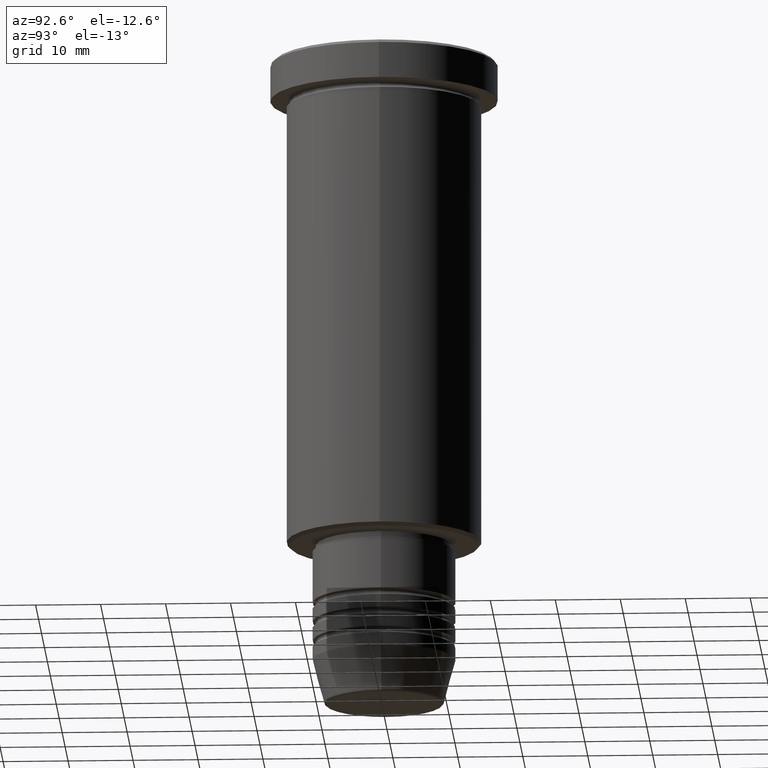
[diagram: clean part render]
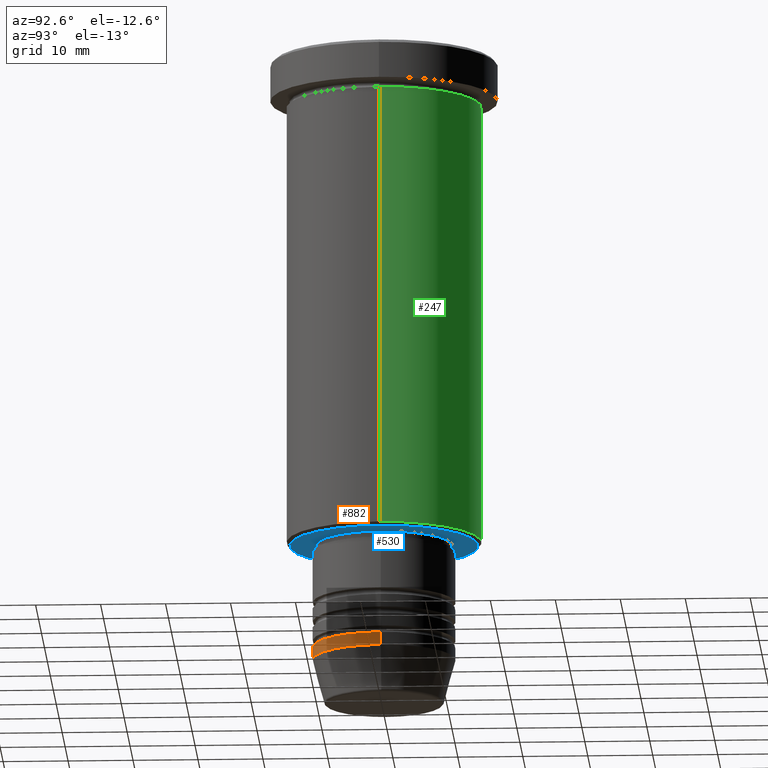
[diagram: same view with three faces highlighted in distinct colors, each labeled with its STEP entity id]
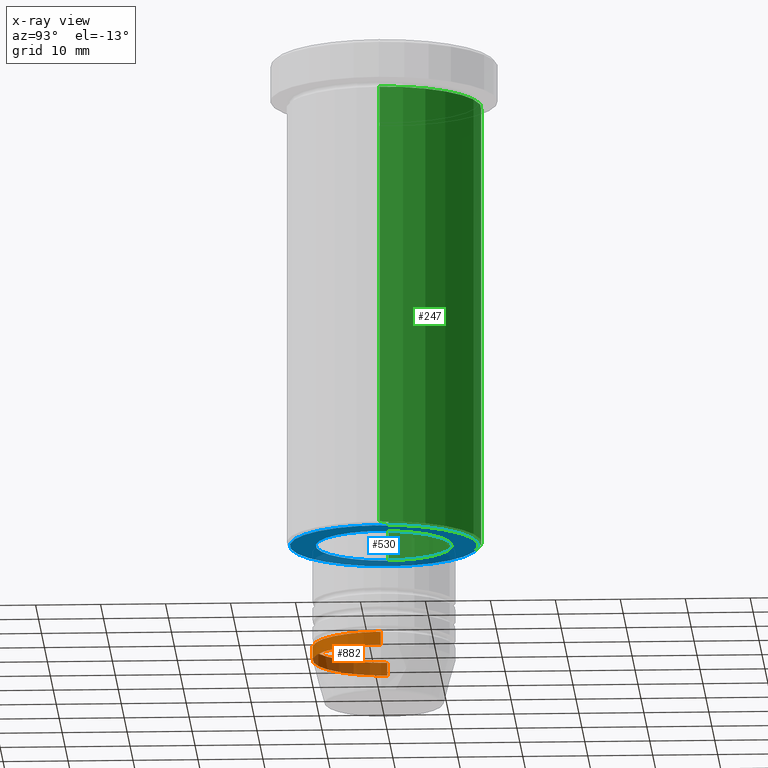
[diagram: x-ray of the same camera — body ghosted, the three highlighted faces saturated]
A machine part, auxiliary view with three faces highlighted in distinct colors.
The next image is the same camera in x-ray (body ghosted, the three faces saturated) — at least one of them is partly hidden behind the body in this view.
Their STEP definitions:

[orange] entity #882 — the highlighted cylindrical surface (partial cylindrical patch) has radius 11 mm, axis along (-0, -0, 1).
#2 = CARTESIAN_POINT ( 'NONE',  ( 0.000000000000000000, 0.000000000000000000, -92.00000000000000000 ) ) ;
#5 = EDGE_CURVE ( 'NONE', #928, #731, #685, .T. ) ;
#65 = AXIS2_PLACEMENT_3D ( 'NONE', #195, #126, #122 ) ;
#73 = CARTESIAN_POINT ( 'NONE',  ( 11.00000000000000000, 0.000000000000000000, -94.00000000000000000 ) ) ;
#94 = FACE_OUTER_BOUND ( 'NONE', #640, .T. ) ;
#122 = DIRECTION ( 'NONE',  ( 1.000000000000000000, 0.000000000000000000, 0.000000000000000000 ) ) ;
#126 = DIRECTION ( 'NONE',  ( -0.000000000000000000, -0.000000000000000000, 1.000000000000000000 ) ) ;
#169 = AXIS2_PLACEMENT_3D ( 'NONE', #2, #541, #545 ) ;
#178 = CARTESIAN_POINT ( 'NONE',  ( 11.00000000000000000, 0.000000000000000000, -92.00000000000000000 ) ) ;
#195 = CARTESIAN_POINT ( 'NONE',  ( 0.000000000000000000, 0.000000000000000000, 0.000000000000000000 ) ) ;
#220 = EDGE_CURVE ( 'NONE', #1052, #755, #803, .T. ) ;
#443 = AXIS2_PLACEMENT_3D ( 'NONE', #840, #1031, #497 ) ;
#447 = CARTESIAN_POINT ( 'NONE',  ( -11.00000000000000000, 1.347111479062088405E-15, -94.00000000000000000 ) ) ;
#465 = VECTOR ( 'NONE', #801, 1000.000000000000000 ) ;
#497 = DIRECTION ( 'NONE',  ( 1.000000000000000000, 0.000000000000000000, 0.000000000000000000 ) ) ;
#505 = CARTESIAN_POINT ( 'NONE',  ( -11.00000000000000000, 1.347111479062088405E-15, -92.00000000000000000 ) ) ;
#541 = DIRECTION ( 'NONE',  ( -0.000000000000000000, -0.000000000000000000, 1.000000000000000000 ) ) ;
#545 = DIRECTION ( 'NONE',  ( 1.000000000000000000, 0.000000000000000000, 0.000000000000000000 ) ) ;
#588 = LINE ( 'NONE', #1037, #1002 ) ;
#640 = EDGE_LOOP ( 'NONE', ( #923, #1105, #1047, #954 ) ) ;
#685 = CIRCLE ( 'NONE', #169, 11.00000000000000000 ) ;
#717 = EDGE_CURVE ( 'NONE', #1052, #928, #1182, .T. ) ;
#731 = VERTEX_POINT ( 'NONE', #178 ) ;
#755 = VERTEX_POINT ( 'NONE', #73 ) ;
#801 = DIRECTION ( 'NONE',  ( -0.000000000000000000, -0.000000000000000000, 1.000000000000000000 ) ) ;
#803 = CIRCLE ( 'NONE', #443, 11.00000000000000000 ) ;
#840 = CARTESIAN_POINT ( 'NONE',  ( 0.000000000000000000, 0.000000000000000000, -94.00000000000000000 ) ) ;
#882 = ADVANCED_FACE ( 'NONE', ( #94 ), #1016, .T. ) ;
#923 = ORIENTED_EDGE ( 'NONE', *, *, #717, .F. ) ;
#928 = VERTEX_POINT ( 'NONE', #505 ) ;
#953 = DIRECTION ( 'NONE',  ( -0.000000000000000000, -0.000000000000000000, 1.000000000000000000 ) ) ;
#954 = ORIENTED_EDGE ( 'NONE', *, *, #5, .F. ) ;
#975 = EDGE_CURVE ( 'NONE', #755, #731, #588, .T. ) ;
#999 = CARTESIAN_POINT ( 'NONE',  ( -11.00000000000000000, 1.347111479062088405E-15, 0.000000000000000000 ) ) ;
#1002 = VECTOR ( 'NONE', #953, 1000.000000000000000 ) ;
#1016 = CYLINDRICAL_SURFACE ( 'NONE', #65, 11.00000000000000000 ) ;
#1031 = DIRECTION ( 'NONE',  ( -0.000000000000000000, -0.000000000000000000, 1.000000000000000000 ) ) ;
#1037 = CARTESIAN_POINT ( 'NONE',  ( 11.00000000000000000, 0.000000000000000000, 0.000000000000000000 ) ) ;
#1047 = ORIENTED_EDGE ( 'NONE', *, *, #975, .T. ) ;
#1052 = VERTEX_POINT ( 'NONE', #447 ) ;
#1105 = ORIENTED_EDGE ( 'NONE', *, *, #220, .T. ) ;
#1182 = LINE ( 'NONE', #999, #465 ) ;

[blue] entity #530 — the highlighted planar face has unit normal (0, 0, -1).
#35 = VERTEX_POINT ( 'NONE', #81 ) ;
#78 = DIRECTION ( 'NONE',  ( 0.000000000000000000, 0.000000000000000000, -1.000000000000000000 ) ) ;
#81 = CARTESIAN_POINT ( 'NONE',  ( 10.49999999999999822, 0.000000000000000000, -76.00000000000000000 ) ) ;
#113 = CARTESIAN_POINT ( 'NONE',  ( 0.000000000000000000, 15.00000000000000000, -76.00000000000000000 ) ) ;
#131 = EDGE_LOOP ( 'NONE', ( #837, #949 ) ) ;
#259 = DIRECTION ( 'NONE',  ( -0.000000000000000000, -0.000000000000000000, 1.000000000000000000 ) ) ;
#297 = CIRCLE ( 'NONE', #783, 10.49999999999999822 ) ;
#298 = DIRECTION ( 'NONE',  ( -1.000000000000000000, 0.000000000000000000, 0.000000000000000000 ) ) ;
#345 = CARTESIAN_POINT ( 'NONE',  ( 0.000000000000000000, 0.000000000000000000, -76.00000000000000000 ) ) ;
#355 = DIRECTION ( 'NONE',  ( -1.000000000000000000, 0.000000000000000000, 0.000000000000000000 ) ) ;
#451 = CARTESIAN_POINT ( 'NONE',  ( -14.49999999999998401, 1.806354028742345013E-15, -76.00000000000000000 ) ) ;
#481 = CARTESIAN_POINT ( 'NONE',  ( 0.000000000000000000, 0.000000000000000000, -76.00000000000000000 ) ) ;
#496 = EDGE_CURVE ( 'NONE', #562, #963, #896, .T. ) ;
#517 = AXIS2_PLACEMENT_3D ( 'NONE', #481, #78, #298 ) ;
#530 = ADVANCED_FACE ( 'NONE', ( #752, #626 ), #569, .T. ) ;
#552 = ORIENTED_EDGE ( 'NONE', *, *, #1049, .T. ) ;
#562 = VERTEX_POINT ( 'NONE', #451 ) ;
#569 = PLANE ( 'NONE',  #1042 ) ;
#572 = CARTESIAN_POINT ( 'NONE',  ( -10.49999999999999822, 1.285879139104720633E-15, -76.00000000000000000 ) ) ;
#617 = DIRECTION ( 'NONE',  ( 1.000000000000000000, 0.000000000000000000, 0.000000000000000000 ) ) ;
#619 = DIRECTION ( 'NONE',  ( 1.000000000000000000, 0.000000000000000000, 0.000000000000000000 ) ) ;
#626 = FACE_BOUND ( 'NONE', #131, .T. ) ;
#694 = CARTESIAN_POINT ( 'NONE',  ( 0.000000000000000000, 0.000000000000000000, -76.00000000000000000 ) ) ;
#709 = CIRCLE ( 'NONE', #728, 14.49999999999998401 ) ;
#712 = ORIENTED_EDGE ( 'NONE', *, *, #496, .T. ) ;
#715 = DIRECTION ( 'NONE',  ( -0.000000000000000000, -0.000000000000000000, 1.000000000000000000 ) ) ;
#728 = AXIS2_PLACEMENT_3D ( 'NONE', #1167, #1157, #355 ) ;
#752 = FACE_OUTER_BOUND ( 'NONE', #870, .T. ) ;
#783 = AXIS2_PLACEMENT_3D ( 'NONE', #345, #259, #619 ) ;
#785 = EDGE_CURVE ( 'NONE', #833, #35, #297, .T. ) ;
#808 = AXIS2_PLACEMENT_3D ( 'NONE', #694, #715, #617 ) ;
#833 = VERTEX_POINT ( 'NONE', #572 ) ;
#837 = ORIENTED_EDGE ( 'NONE', *, *, #1151, .T. ) ;
#870 = EDGE_LOOP ( 'NONE', ( #552, #712 ) ) ;
#896 = CIRCLE ( 'NONE', #517, 14.49999999999998401 ) ;
#924 = DIRECTION ( 'NONE',  ( 0.000000000000000000, 0.000000000000000000, -1.000000000000000000 ) ) ;
#949 = ORIENTED_EDGE ( 'NONE', *, *, #785, .T. ) ;
#963 = VERTEX_POINT ( 'NONE', #1149 ) ;
#1042 = AXIS2_PLACEMENT_3D ( 'NONE', #113, #924, #1129 ) ;
#1045 = CIRCLE ( 'NONE', #808, 10.49999999999999822 ) ;
#1049 = EDGE_CURVE ( 'NONE', #963, #562, #709, .T. ) ;
#1129 = DIRECTION ( 'NONE',  ( -1.000000000000000000, 0.000000000000000000, -0.000000000000000000 ) ) ;
#1149 = CARTESIAN_POINT ( 'NONE',  ( 14.49999999999998401, 0.000000000000000000, -76.00000000000000000 ) ) ;
#1151 = EDGE_CURVE ( 'NONE', #35, #833, #1045, .T. ) ;
#1157 = DIRECTION ( 'NONE',  ( 0.000000000000000000, 0.000000000000000000, -1.000000000000000000 ) ) ;
#1167 = CARTESIAN_POINT ( 'NONE',  ( 0.000000000000000000, 0.000000000000000000, -76.00000000000000000 ) ) ;

[green] entity #247 — the highlighted cylindrical surface (partial cylindrical patch) has radius 15 mm, axis along (-0, -0, 1).
#125 = CARTESIAN_POINT ( 'NONE',  ( 0.000000000000000000, 0.000000000000000000, 0.000000000000000000 ) ) ;
#144 = ORIENTED_EDGE ( 'NONE', *, *, #832, .F. ) ;
#153 = AXIS2_PLACEMENT_3D ( 'NONE', #1179, #667, #1039 ) ;
#155 = VECTOR ( 'NONE', #1111, 1000.000000000000000 ) ;
#172 = VERTEX_POINT ( 'NONE', #1130 ) ;
#209 = DIRECTION ( 'NONE',  ( 1.000000000000000000, 0.000000000000000000, 0.000000000000000000 ) ) ;
#210 = ORIENTED_EDGE ( 'NONE', *, *, #859, .T. ) ;
#211 = DIRECTION ( 'NONE',  ( -0.000000000000000000, -0.000000000000000000, 1.000000000000000000 ) ) ;
#247 = ADVANCED_FACE ( 'NONE', ( #664 ), #1054, .T. ) ;
#255 = CIRCLE ( 'NONE', #1178, 15.00000000000000000 ) ;
#367 = EDGE_LOOP ( 'NONE', ( #656, #210, #144, #781 ) ) ;
#457 = CARTESIAN_POINT ( 'NONE',  ( -15.00000000000000000, 1.836970198721029589E-15, 0.000000000000000000 ) ) ;
#493 = DIRECTION ( 'NONE',  ( -0.000000000000000000, -0.000000000000000000, 1.000000000000000000 ) ) ;
#551 = VERTEX_POINT ( 'NONE', #1034 ) ;
#563 = EDGE_CURVE ( 'NONE', #578, #618, #721, .T. ) ;
#574 = CARTESIAN_POINT ( 'NONE',  ( 15.00000000000000000, 0.000000000000000000, -75.49999999999998579 ) ) ;
#578 = VERTEX_POINT ( 'NONE', #574 ) ;
#618 = VERTEX_POINT ( 'NONE', #807 ) ;
#620 = EDGE_CURVE ( 'NONE', #578, #551, #672, .T. ) ;
#656 = ORIENTED_EDGE ( 'NONE', *, *, #620, .T. ) ;
#664 = FACE_OUTER_BOUND ( 'NONE', #367, .T. ) ;
#667 = DIRECTION ( 'NONE',  ( -0.000000000000000000, -0.000000000000000000, 1.000000000000000000 ) ) ;
#672 = CIRCLE ( 'NONE', #153, 15.00000000000000000 ) ;
#721 = LINE ( 'NONE', #851, #939 ) ;
#781 = ORIENTED_EDGE ( 'NONE', *, *, #563, .F. ) ;
#807 = CARTESIAN_POINT ( 'NONE',  ( 15.00000000000000000, 0.000000000000000000, -6.999999999999995559 ) ) ;
#832 = EDGE_CURVE ( 'NONE', #618, #172, #255, .T. ) ;
#851 = CARTESIAN_POINT ( 'NONE',  ( 15.00000000000000000, 0.000000000000000000, 0.000000000000000000 ) ) ;
#856 = DIRECTION ( 'NONE',  ( 1.000000000000000000, 0.000000000000000000, 0.000000000000000000 ) ) ;
#859 = EDGE_CURVE ( 'NONE', #551, #172, #1011, .T. ) ;
#922 = CARTESIAN_POINT ( 'NONE',  ( 0.000000000000000000, 0.000000000000000000, -6.999999999999995559 ) ) ;
#939 = VECTOR ( 'NONE', #211, 1000.000000000000000 ) ;
#1011 = LINE ( 'NONE', #457, #155 ) ;
#1032 = DIRECTION ( 'NONE',  ( -0.000000000000000000, -0.000000000000000000, 1.000000000000000000 ) ) ;
#1034 = CARTESIAN_POINT ( 'NONE',  ( -15.00000000000000000, 1.836970198721029589E-15, -75.49999999999998579 ) ) ;
#1039 = DIRECTION ( 'NONE',  ( -1.000000000000000000, 0.000000000000000000, 0.000000000000000000 ) ) ;
#1054 = CYLINDRICAL_SURFACE ( 'NONE', #1119, 15.00000000000000000 ) ;
#1111 = DIRECTION ( 'NONE',  ( -0.000000000000000000, -0.000000000000000000, 1.000000000000000000 ) ) ;
#1119 = AXIS2_PLACEMENT_3D ( 'NONE', #125, #493, #856 ) ;
#1130 = CARTESIAN_POINT ( 'NONE',  ( -15.00000000000000000, 1.836970198721029589E-15, -6.999999999999995559 ) ) ;
#1178 = AXIS2_PLACEMENT_3D ( 'NONE', #922, #1032, #209 ) ;
#1179 = CARTESIAN_POINT ( 'NONE',  ( 0.000000000000000000, 0.000000000000000000, -75.49999999999998579 ) ) ;